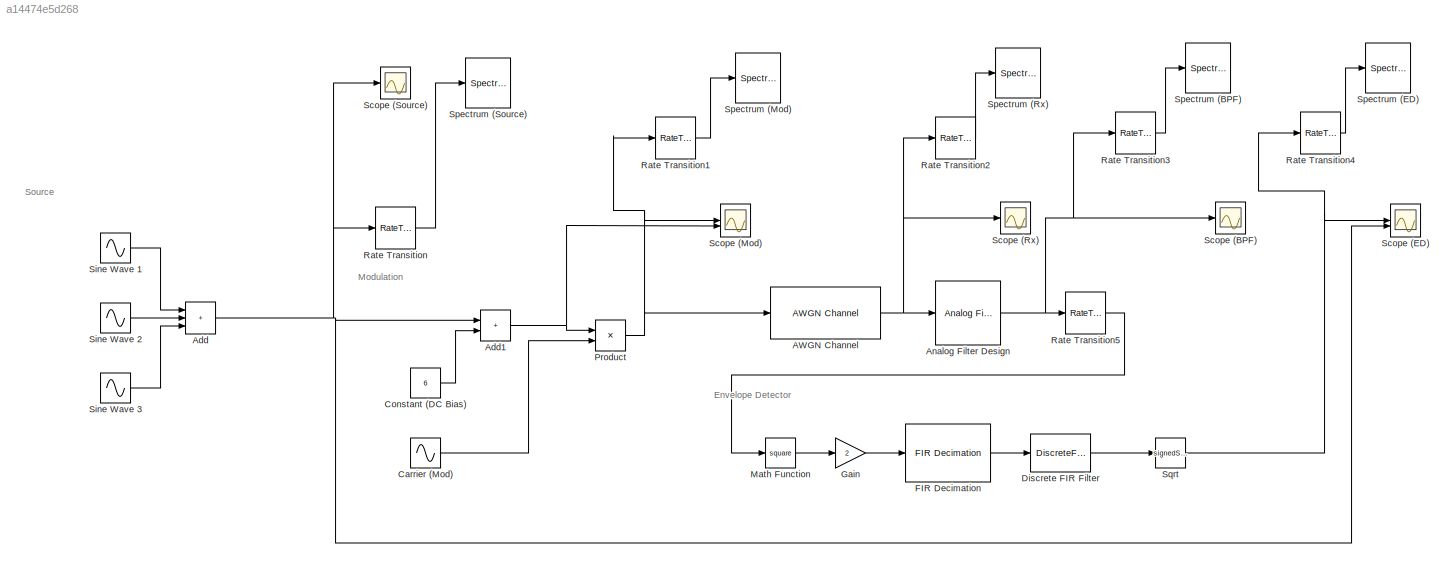
MODEL slx_a14474e5d268
KIND model
CONFIG AbsTol = auto
CONFIG EnableMultiTasking = off
CONFIG FixedStep = auto
CONFIG MaxStep = auto
CONFIG MinStep = auto
CONFIG RelTol = 1e-3
CONFIG SampleTimeConstraint = Unconstrained
CONFIG SolverName = VariableStepAuto
CONFIG StartTime = 0.0
CONFIG StopTime = 10.0
BLOCK [Reference] AWGN Channel  REF=commchan3/AWGN
Channel
  SourceBlock = commchan3/AWGN\nChannel
  SourceType = AWGN Channel
BLOCK [Sum] Add
  IconShape = rectangular
  Inputs = +++
BLOCK [Sum] Add1
  IconShape = rectangular
BLOCK [Reference] Analog Filter Design  REF=dspfdesign/Analog
Filter Design
  SourceBlock = dspfdesign/Analog\nFilter Design
  SourceType = Analog Filter Design
BLOCK [Sin] Carrier (Mod)
  Frequency = 30000*pi
  Phase = pi/2
  SampleTime = 0
BLOCK [Constant] Constant (DC Bias)
  Value = 6
BLOCK [DiscreteFir] Discrete FIR Filter
  Coefficients = firpm(20,[0 0.03 0.1 1], [1 1 0 0])
  InputPortMap = u0
  OutputPortMap = o0
BLOCK [Reference] FIR Decimation  REF=dspmlti4/FIR
Decimation
  SourceBlock = dspmlti4/FIR\nDecimation
  SourceType = FIR Decimation
  UserDataPersistent = on
BLOCK [Gain] Gain
  Gain = 2
BLOCK [Math] Math Function
  Operator = square
BLOCK [Product] Product
BLOCK [RateTransition] Rate Transition
  OutPortSampleTime = 2e-5
BLOCK [RateTransition] Rate Transition1
  OutPortSampleTime = 2e-5
BLOCK [RateTransition] Rate Transition2
  OutPortSampleTime = 2e-5
BLOCK [RateTransition] Rate Transition3
  OutPortSampleTime = 2e-5
BLOCK [RateTransition] Rate Transition4
  OutPortSampleTime = 2e-5
BLOCK [RateTransition] Rate Transition5
  OutPortSampleTime = 2e-5
BLOCK [Scope] Scope (BPF)
  Floating = off
  NumInputPorts = 1
  ScopeSpecificationString = Simulink.scopes.TimeScopeBlockCfg('CurrentConfiguration', extmgr.ConfigurationSet(extmgr.Configuration('Core','General UI',true),extmgr.Configuration('Core','Source UI',true),extmgr.Configuration('Sources','WiredSimulink',true,'DataLoggingVariableName','ScopeData3'),extmgr.Configuration('Visuals','Time Domain',true),extmgr.Configuration('Tools','Plot Navigation',true),extmgr.Configuration('Tools',...<+40ch>
BLOCK [Scope] Scope (ED)
  Floating = off
  NumInputPorts = 2
  ScopeSpecificationString = Simulink.scopes.TimeScopeBlockCfg('CurrentConfiguration', extmgr.ConfigurationSet(extmgr.Configuration('Core','General UI',true),extmgr.Configuration('Core','Source UI',true),extmgr.Configuration('Sources','WiredSimulink',true,'DataLoggingVariableName','ScopeData4'),extmgr.Configuration('Visuals','Time Domain',true,'SerializedDisplays',{struct('MinYLimReal','-8.13434','MaxYLimReal','28.9182','YLab...<+1557ch>
BLOCK [Scope] Scope (Mod)
  Floating = off
  NumInputPorts = 2
  ScopeSpecificationString = Simulink.scopes.TimeScopeBlockCfg('CurrentConfiguration', extmgr.ConfigurationSet(extmgr.Configuration('Core','General UI',true),extmgr.Configuration('Core','Source UI',true),extmgr.Configuration('Sources','WiredSimulink',true,'DataLoggingVariableName','ScopeData1'),extmgr.Configuration('Visuals','Time Domain',true,'SerializedDisplays',{struct('MinYLimReal','-13.62516','MaxYLimReal','13.57415','YL...<+1567ch>
BLOCK [Scope] Scope (Rx)
  Floating = off
  NumInputPorts = 1
  ScopeSpecificationString = Simulink.scopes.TimeScopeBlockCfg('CurrentConfiguration', extmgr.ConfigurationSet(extmgr.Configuration('Core','General UI',true),extmgr.Configuration('Core','Source UI',true),extmgr.Configuration('Sources','WiredSimulink',true,'DataLoggingVariableName','ScopeData2'),extmgr.Configuration('Visuals','Time Domain',true,'SerializedDisplays',{struct('MinYLimReal','-13.9559','MaxYLimReal','13.97031','YLa...<+1464ch>
BLOCK [Scope] Scope (Source)
  Floating = off
  NumInputPorts = 1
  ScopeSpecificationString = Simulink.scopes.TimeScopeBlockCfg('CurrentConfiguration', extmgr.ConfigurationSet(extmgr.Configuration('Core','General UI',true),extmgr.Configuration('Core','Source UI',true),extmgr.Configuration('Sources','WiredSimulink',true),extmgr.Configuration('Visuals','Time Domain',true,'SerializedDisplays',{struct('MinYLimReal','-5.7803','MaxYLimReal','6.4344','YLabelReal','','MinYLimMag','0.00000','MaxYLi...<+1479ch>
BLOCK [Sin] Sine Wave 1
  Frequency = 1000*pi
  SampleTime = 0
BLOCK [Sin] Sine Wave 2
  Amplitude = 3
  Frequency = 600*pi
  NameLocation = left
  SampleTime = 0
BLOCK [Sin] Sine Wave 3
  Amplitude = 1.5
  Frequency = 1200*pi
  SampleTime = 0
BLOCK [SpectrumAnalyzer] Spectrum (BPF)
  GraphicalSettings = {"GraphicalSettings":{"Style":{"BackgroundColor":[0.12941176470588237,0.12941176470588237,0.12941176470588237],"AxesColor":[0.07058823529411765,0.07058823529411765,0.07058823529411765],"LabelsColor":[0.8509803921568627,0.8509803921568627,0.8509803921568627],"PreserveColors":false,"Visible":[true],"LineStyle":["-"],"LineColor":[[1,0.9098039215686274,0.39215686274509803]],"LineWidth":[1.5],"Marker":...<+945ch>
  ScopeFrameLocation = window
  SelectedToolstripTab = spectrumAnalyzerToolstrip.measurementsTab
  WasSavedAsWebScope = on
  WindowPosition = [0.000000,36.000000,1536.000000,792.000000,]
  YLimits = [-38.68673621,48.15422087]
BLOCK [SpectrumAnalyzer] Spectrum (ED)
  GraphicalSettings = {"GraphicalSettings":{"Style":{"BackgroundColor":[0.12941176470588237,0.12941176470588237,0.12941176470588237],"AxesColor":[0.07058823529411765,0.07058823529411765,0.07058823529411765],"LabelsColor":[0.8509803921568627,0.8509803921568627,0.8509803921568627],"PreserveColors":false,"Visible":[true],"LineStyle":["-"],"LineColor":[[1,0.9098039215686274,0.39215686274509803]],"LineWidth":[1.5],"Marker":...<+946ch>
  RBW = 1
  ScopeFrameLocation = window
  SelectedToolstripTab = spectrumAnalyzerToolstrip.estimationTab
  WasSavedAsWebScope = on
  WindowPosition = [0.000000,36.000000,1536.000000,792.000000,]
  YLimits = [-120.1629039,67.75974112]
BLOCK [SpectrumAnalyzer] Spectrum (Mod)
  GraphicalSettings = {"GraphicalSettings":{"Style":{"BackgroundColor":[0.12941176470588237,0.12941176470588237,0.12941176470588237],"AxesColor":[0.07058823529411765,0.07058823529411765,0.07058823529411765],"LabelsColor":[0.8509803921568627,0.8509803921568627,0.8509803921568627],"PreserveColors":false,"Visible":[true],"LineStyle":["-"],"LineColor":[[1,0.9098039215686274,0.39215686274509803]],"LineWidth":[1.5],"Marker":...<+944ch>
  ScopeFrameLocation = window
  SelectedToolstripTab = spectrumAnalyzerToolstrip.channelMeasurementsTab
  WasSavedAsWebScope = on
  WindowPosition = [0.000000,36.000000,1536.000000,792.000000,]
  YLimits = [-27.97115231,46.40132462]
BLOCK [SpectrumAnalyzer] Spectrum (Rx)
  GraphicalSettings = {"GraphicalSettings":{"Style":{"BackgroundColor":[0.12941176470588237,0.12941176470588237,0.12941176470588237],"AxesColor":[0.07058823529411765,0.07058823529411765,0.07058823529411765],"LabelsColor":[0.8509803921568627,0.8509803921568627,0.8509803921568627],"PreserveColors":false,"Visible":[true],"LineStyle":["-"],"LineColor":[[1,0.9098039215686274,0.39215686274509803]],"LineWidth":[1.5],"Marker":...<+1045ch>
  ScopeFrameLocation = window
  SelectedToolstripTab = spectrumAnalyzerToolstrip.measurementsTab
  WasSavedAsWebScope = on
  WindowPosition = [0.000000,36.000000,1536.000000,792.000000,]
  YLimits = [-29.40234738,46.56202468]
BLOCK [SpectrumAnalyzer] Spectrum (Source)
  GraphicalSettings = {"GraphicalSettings":{"Style":{"BackgroundColor":[0.12941176470588237,0.12941176470588237,0.12941176470588237],"AxesColor":[0.07058823529411765,0.07058823529411765,0.07058823529411765],"LabelsColor":[0.8509803921568627,0.8509803921568627,0.8509803921568627],"PreserveColors":false,"Visible":[true],"LineStyle":["-"],"LineColor":[[1,0.9098039215686274,0.39215686274509803]],"LineWidth":[1.5],"Marker":...<+1012ch>
  ScopeFrameLocation = window
  SelectedToolstripTab = spectrumAnalyzerToolstrip.channelMeasurementsTab
  WasSavedAsWebScope = on
  WindowPosition = [0.000000,36.000000,1536.000000,792.000000,]
  YLimits = [-34.50902388,40.71788721]
BLOCK [Sqrt] Sqrt
  Operator = signedSqrt
ANNOTATION (root): Envelope Detector
ANNOTATION (root): Modulation
ANNOTATION (root): Source
NET AWGN Channel:1 -> Analog Filter Design:1, Rate Transition2:1, Scope (Rx):1
NET Add1:1 -> Product:1, Scope (Mod):2
NET Add:1 -> Add1:1, Rate Transition:1, Scope (ED):2, Scope (Source):1
NET Analog Filter Design:1 -> Rate Transition3:1, Rate Transition5:1, Scope (BPF):1
LINE Carrier (Mod):1 -> Product:2
LINE Constant (DC Bias):1 -> Add1:2
LINE Discrete FIR Filter:1 -> Sqrt:1
LINE FIR Decimation:1 -> Discrete FIR Filter:1
LINE Gain:1 -> FIR Decimation:1
LINE Math Function:1 -> Gain:1
NET Product:1 -> AWGN Channel:1, Rate Transition1:1, Scope (Mod):1
LINE Rate Transition1:1 -> Spectrum (Mod):1
LINE Rate Transition2:1 -> Spectrum (Rx):1
LINE Rate Transition3:1 -> Spectrum (BPF):1
LINE Rate Transition4:1 -> Spectrum (ED):1
LINE Rate Transition5:1 -> Math Function:1
LINE Rate Transition:1 -> Spectrum (Source):1
LINE Sine Wave 1:1 -> Add:1
LINE Sine Wave 2:1 -> Add:2
LINE Sine Wave 3:1 -> Add:3
NET Sqrt:1 -> Rate Transition4:1, Scope (ED):1
note: NET lines group one-source signal fan-out (src -> all destinations, sorted); 1:1 wires keep LINE
